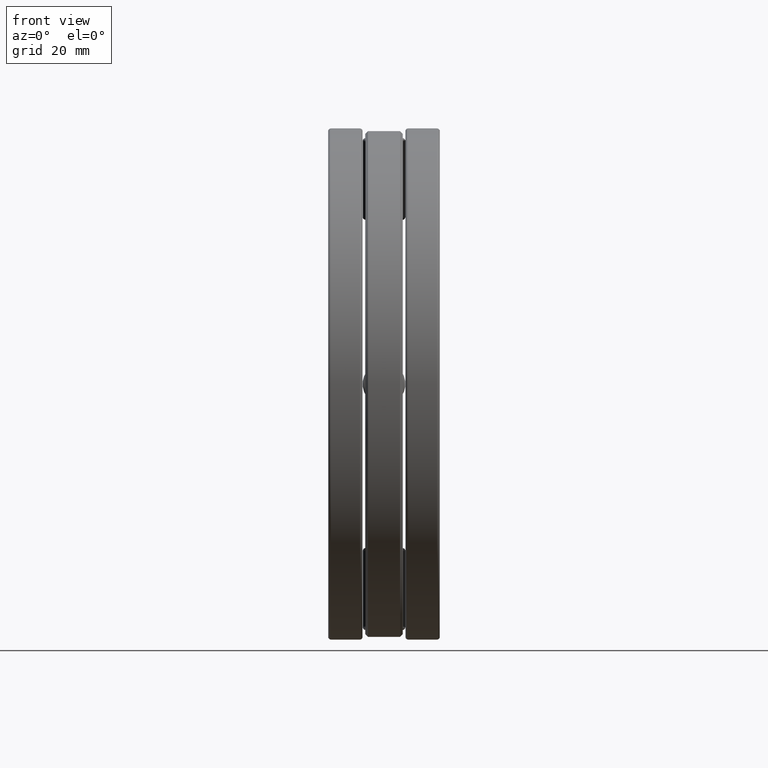
[diagram: clean part render]
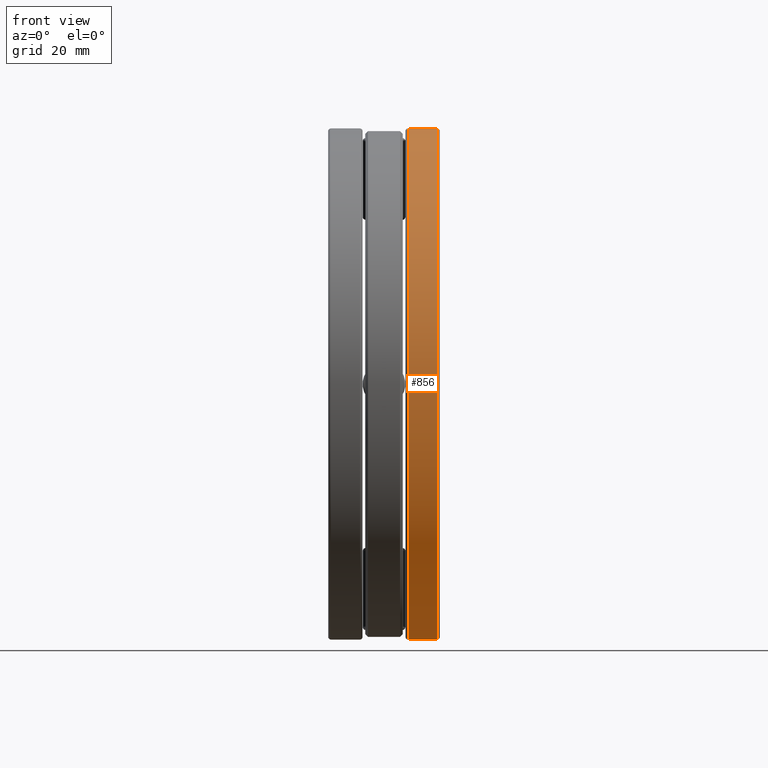
[diagram: same view with one face highlighted and labeled with its STEP entity id]
A machine part, front view. The second image highlights one B-rep face of the part: STEP entity #856.
In plain terms, the highlighted cylindrical surface (bore or boss wall) has radius 47.2281 mm, axis along (-1, -0, -0).
Its self-contained STEP definition (entity closure, byte-faithful):
#15 = AXIS2_PLACEMENT_3D ( 'NONE', #1053, #1041, #597 ) ;
#119 = CARTESIAN_POINT ( 'NONE',  ( 0.3860000000000006200, 0.0000000000000000000, 1.859375000000000200 ) ) ;
#142 = AXIS2_PLACEMENT_3D ( 'NONE', #895, #676, #1028 ) ;
#178 = EDGE_LOOP ( 'NONE', ( #1025 ) ) ;
#190 = AXIS2_PLACEMENT_3D ( 'NONE', #1043, #384, #838 ) ;
#372 = CYLINDRICAL_SURFACE ( 'NONE', #142, 1.859375000000000200 ) ;
#384 = DIRECTION ( 'NONE',  ( -1.000000000000000000, -0.0000000000000000000, -0.0000000000000000000 ) ) ;
#437 = EDGE_CURVE ( 'NONE', #612, #612, #528, .T. ) ;
#528 = CIRCLE ( 'NONE', #15, 1.859375000000000200 ) ;
#547 = FACE_OUTER_BOUND ( 'NONE', #1415, .T. ) ;
#574 = VERTEX_POINT ( 'NONE', #1242 ) ;
#597 = DIRECTION ( 'NONE',  ( 0.0000000000000000000, 0.0000000000000000000, 1.000000000000000000 ) ) ;
#612 = VERTEX_POINT ( 'NONE', #119 ) ;
#676 = DIRECTION ( 'NONE',  ( -1.000000000000000000, -0.0000000000000000000, -0.0000000000000000000 ) ) ;
#682 = FACE_OUTER_BOUND ( 'NONE', #178, .T. ) ;
#730 = CIRCLE ( 'NONE', #190, 1.859375000000000200 ) ;
#838 = DIRECTION ( 'NONE',  ( 0.0000000000000000000, 0.0000000000000000000, 1.000000000000000000 ) ) ;
#856 = ADVANCED_FACE ( 'NONE', ( #547, #682 ), #372, .T. ) ;
#880 = EDGE_CURVE ( 'NONE', #574, #574, #730, .T. ) ;
#895 = CARTESIAN_POINT ( 'NONE',  ( 0.0000000000000000000, 0.0000000000000000000, 0.0000000000000000000 ) ) ;
#902 = ORIENTED_EDGE ( 'NONE', *, *, #880, .F. ) ;
#1025 = ORIENTED_EDGE ( 'NONE', *, *, #437, .T. ) ;
#1028 = DIRECTION ( 'NONE',  ( 0.0000000000000000000, 0.0000000000000000000, 1.000000000000000000 ) ) ;
#1041 = DIRECTION ( 'NONE',  ( -1.000000000000000000, -0.0000000000000000000, -0.0000000000000000000 ) ) ;
#1043 = CARTESIAN_POINT ( 'NONE',  ( 0.1759999999999994900, 0.0000000000000000000, 0.0000000000000000000 ) ) ;
#1053 = CARTESIAN_POINT ( 'NONE',  ( 0.3860000000000006200, 0.0000000000000000000, 0.0000000000000000000 ) ) ;
#1242 = CARTESIAN_POINT ( 'NONE',  ( 0.1759999999999994900, 0.0000000000000000000, 1.859375000000000200 ) ) ;
#1415 = EDGE_LOOP ( 'NONE', ( #902 ) ) ;